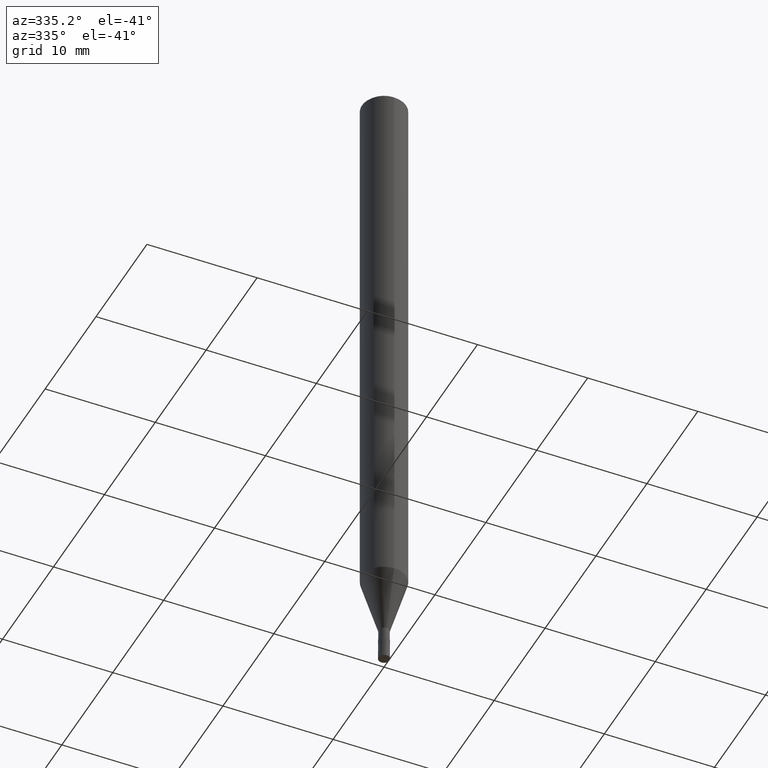
[diagram: clean part render]
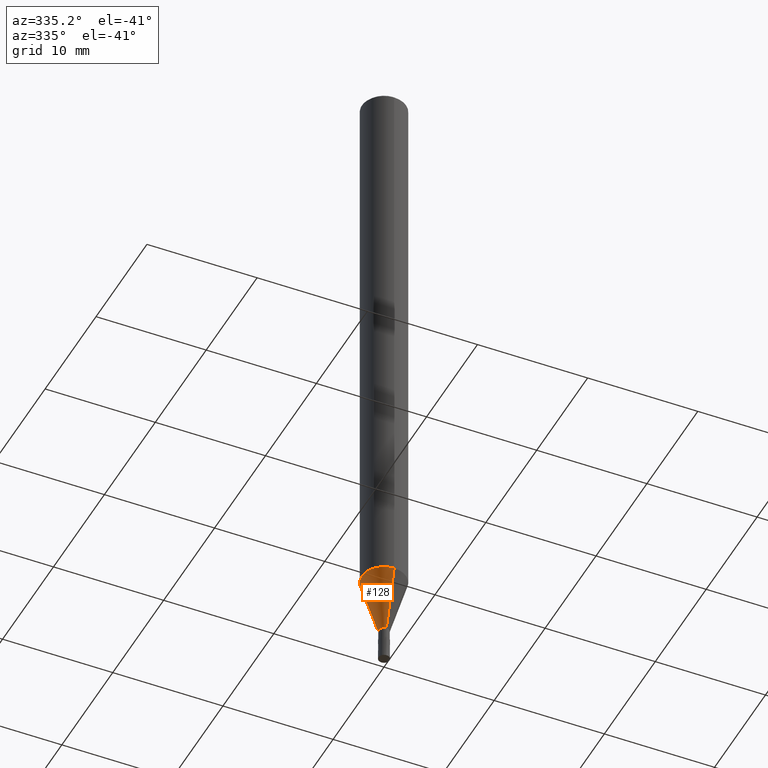
[diagram: same view with one face highlighted and labeled with its STEP entity id]
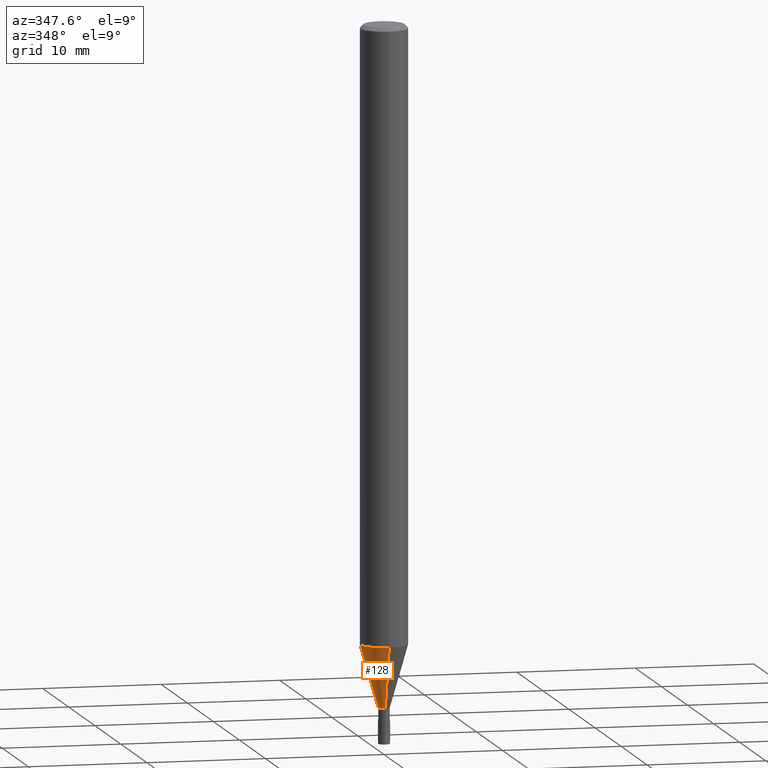
[diagram: same view with one face highlighted and labeled with its STEP entity id]
A machine part, auxiliary view. The second image highlights one B-rep face of the part: STEP entity #128.
A second angle (auxiliary view) of the same face is appended — the face is thin or edge-on in the first view.
In plain terms, the highlighted conical surface has half-angle 16.001 deg.
Its self-contained STEP definition (entity closure, byte-faithful):
#98=EDGE_CURVE('',#134,#122,#237,.T.);
#100=VERTEX_POINT('',#239);
#122=VERTEX_POINT('',#263);
#128=ADVANCED_FACE('',(#269),#270,.T.);
#134=VERTEX_POINT('',#276);
#162=EDGE_CURVE('',#122,#172,#308,.T.);
#172=VERTEX_POINT('',#320);
#192=EDGE_CURVE('',#100,#134,#343,.T.);
#198=EDGE_CURVE('',#100,#172,#349,.T.);
#237=CIRCLE('',#384,1.99995);
#239=CARTESIAN_POINT('',(5.81626787747938E-017,-0.47495,-57.0));
#263=CARTESIAN_POINT('',(0.0,1.99995,-51.682));
#269=FACE_OUTER_BOUND('',#421,.T.);
#270=CONICAL_SURFACE('',#422,1.23745,0.279267977304115);
#276=CARTESIAN_POINT('',(2.44915147732706E-016,-1.99995,-51.682));
#308=LINE('',#468,#469);
#320=CARTESIAN_POINT('',(0.0,0.47495,-57.0));
#343=LINE('',#514,#515);
#349=CIRCLE('',#525,0.47495);
#384=AXIS2_PLACEMENT_3D('',#559,#560,#561);
#421=EDGE_LOOP('',(#591,#592,#593,#594));
#422=AXIS2_PLACEMENT_3D('',#595,#596,#597);
#468=CARTESIAN_POINT('',(-1.5153891325375E-016,1.23745,-54.341));
#469=VECTOR('',#637,1.0);
#514=CARTESIAN_POINT('',(1.5153891325375E-016,-1.23745,-54.341));
#515=VECTOR('',#688,1.0);
#525=AXIS2_PLACEMENT_3D('',#693,#694,#695);
#559=CARTESIAN_POINT('',(0.0,0.0,-51.682));
#560=DIRECTION('',(0.0,0.0,-1.0));
#561=DIRECTION('',(0.0,1.0,0.0));
#591=ORIENTED_EDGE('',*,*,#162,.T.);
#592=ORIENTED_EDGE('',*,*,#198,.F.);
#593=ORIENTED_EDGE('',*,*,#192,.T.);
#594=ORIENTED_EDGE('',*,*,#98,.T.);
#595=CARTESIAN_POINT('',(0.0,0.0,-54.341));
#596=DIRECTION('',(-0.0,-0.0,1.0));
#597=DIRECTION('',(0.0,1.0,0.0));
#637=DIRECTION('',(3.37565264353533E-017,-0.275652060190515,-0.961257479405349));
#688=DIRECTION('',(3.37565264353533E-017,-0.275652060190515,0.961257479405349));
#693=CARTESIAN_POINT('',(0.0,0.0,-57.0));
#694=DIRECTION('',(0.0,0.0,-1.0));
#695=DIRECTION('',(0.0,1.0,0.0));